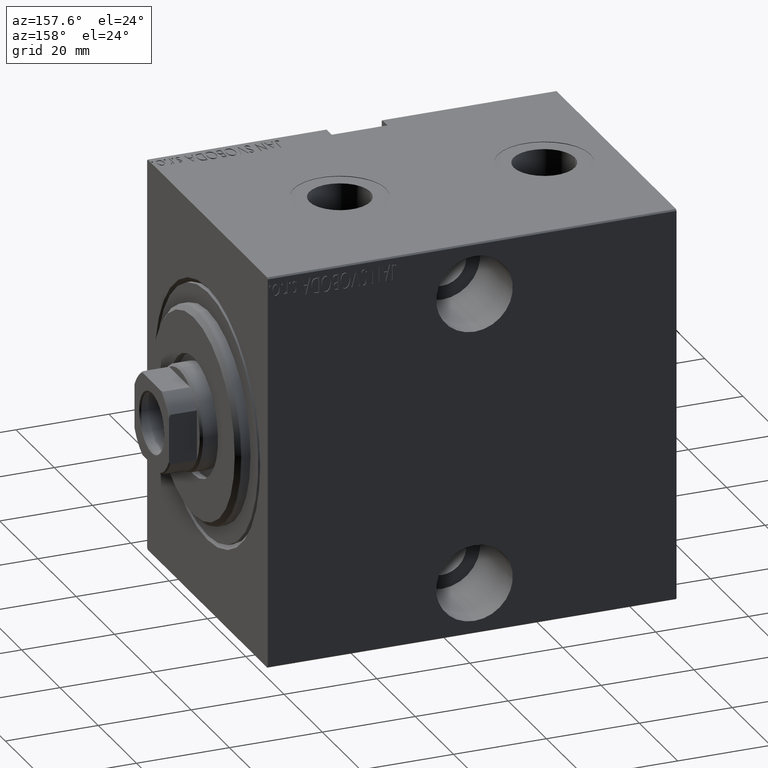
[diagram: clean part render]
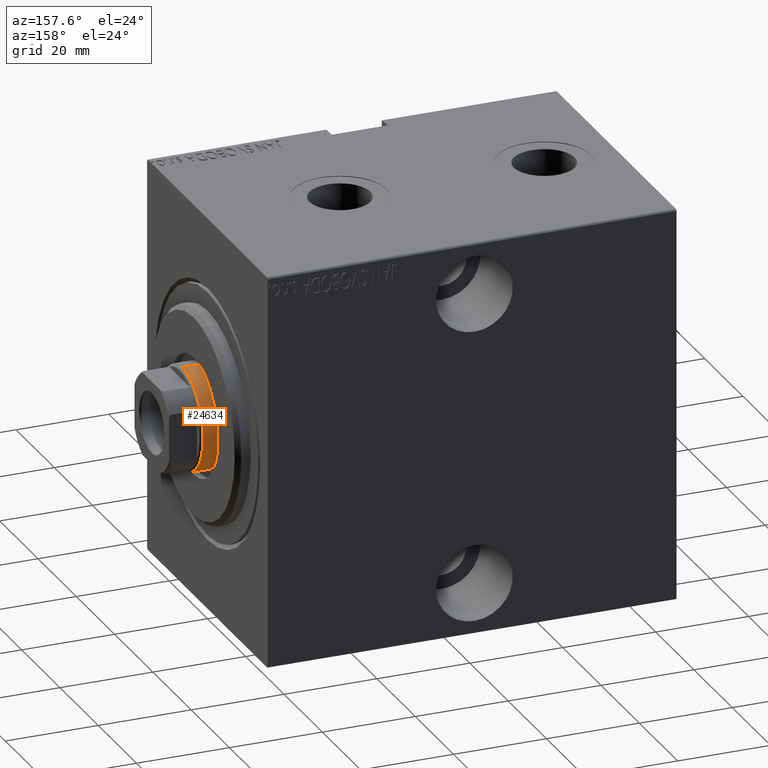
[diagram: same view with one face highlighted and labeled with its STEP entity id]
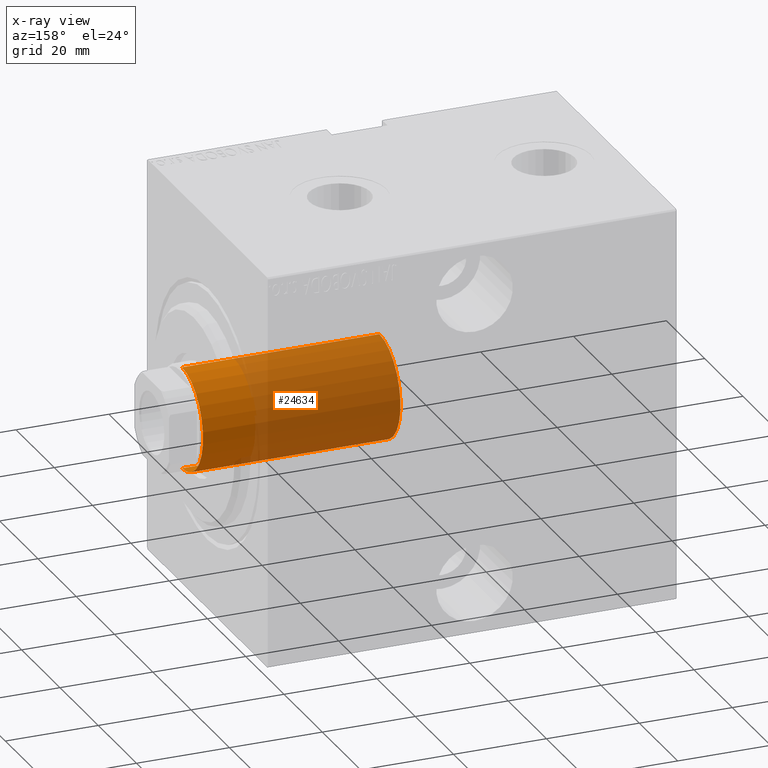
[diagram: x-ray of the same camera — body ghosted, the highlighted face saturated]
A machine part, auxiliary view. The second image highlights one B-rep face of the part: STEP entity #24634.
The next image is the same camera in x-ray: the body ghosted, the highlighted face saturated — about 74% of this face is hidden behind the body in this view.
In plain terms, the highlighted cylindrical surface (partial cylindrical patch) has radius 11 mm, axis along (-1, -0, 0).
Its self-contained STEP definition (entity closure, byte-faithful):
#152 = CARTESIAN_POINT ( 'NONE',  ( 11.00000000000000000, 1.347111479062088405E-15, 81.49999999999997158 ) ) ;
#296 = CIRCLE ( 'NONE', #30771, 11.00000000000000000 ) ;
#2436 = VERTEX_POINT ( 'NONE', #152 ) ;
#3063 = VECTOR ( 'NONE', #39102, 1000.000000000000000 ) ;
#3264 = VERTEX_POINT ( 'NONE', #15208 ) ;
#4395 = AXIS2_PLACEMENT_3D ( 'NONE', #12074, #14908, #25319 ) ;
#4932 = DIRECTION ( 'NONE',  ( -1.000000000000000000, 0.000000000000000000, 0.000000000000000000 ) ) ;
#7599 = EDGE_LOOP ( 'NONE', ( #23612, #20961, #18932, #10983 ) ) ;
#7776 = EDGE_CURVE ( 'NONE', #36027, #33433, #25422, .T. ) ;
#8930 = CARTESIAN_POINT ( 'NONE',  ( -11.00000000000000000, 0.000000000000000000, 81.49999999999997158 ) ) ;
#9305 = AXIS2_PLACEMENT_3D ( 'NONE', #27928, #31192, #4932 ) ;
#10983 = ORIENTED_EDGE ( 'NONE', *, *, #7776, .F. ) ;
#11056 = EDGE_CURVE ( 'NONE', #2436, #3264, #42191, .T. ) ;
#12074 = CARTESIAN_POINT ( 'NONE',  ( 0.000000000000000000, 0.000000000000000000, 81.49999999999997158 ) ) ;
#12835 = EDGE_CURVE ( 'NONE', #3264, #33433, #296, .T. ) ;
#14319 = DIRECTION ( 'NONE',  ( 1.000000000000000000, 0.000000000000000000, 0.000000000000000000 ) ) ;
#14908 = DIRECTION ( 'NONE',  ( 0.000000000000000000, 0.000000000000000000, -1.000000000000000000 ) ) ;
#15208 = CARTESIAN_POINT ( 'NONE',  ( 11.00000000000000000, 1.347111479062088405E-15, 39.00000000000000000 ) ) ;
#18729 = CARTESIAN_POINT ( 'NONE',  ( 11.00000000000000000, 1.347111479062088405E-15, 81.99999999999998579 ) ) ;
#18932 = ORIENTED_EDGE ( 'NONE', *, *, #12835, .T. ) ;
#19345 = CARTESIAN_POINT ( 'NONE',  ( -11.00000000000000000, 0.000000000000000000, 81.99999999999998579 ) ) ;
#20961 = ORIENTED_EDGE ( 'NONE', *, *, #11056, .T. ) ;
#22437 = CIRCLE ( 'NONE', #4395, 11.00000000000000000 ) ;
#23580 = EDGE_CURVE ( 'NONE', #36027, #2436, #22437, .T. ) ;
#23612 = ORIENTED_EDGE ( 'NONE', *, *, #23580, .T. ) ;
#24634 = ADVANCED_FACE ( 'NONE', ( #34022 ), #34667, .T. ) ;
#25319 = DIRECTION ( 'NONE',  ( 1.000000000000000000, 0.000000000000000000, 0.000000000000000000 ) ) ;
#25422 = LINE ( 'NONE', #19345, #3063 ) ;
#27928 = CARTESIAN_POINT ( 'NONE',  ( 0.000000000000000000, 0.000000000000000000, 81.99999999999998579 ) ) ;
#27968 = CARTESIAN_POINT ( 'NONE',  ( 0.000000000000000000, 0.000000000000000000, 39.00000000000000000 ) ) ;
#30771 = AXIS2_PLACEMENT_3D ( 'NONE', #27968, #34497, #14319 ) ;
#30899 = CARTESIAN_POINT ( 'NONE',  ( -11.00000000000000000, 0.000000000000000000, 39.00000000000000000 ) ) ;
#31192 = DIRECTION ( 'NONE',  ( -0.000000000000000000, -0.000000000000000000, -1.000000000000000000 ) ) ;
#31418 = VECTOR ( 'NONE', #32410, 1000.000000000000000 ) ;
#32410 = DIRECTION ( 'NONE',  ( -0.000000000000000000, -0.000000000000000000, -1.000000000000000000 ) ) ;
#33433 = VERTEX_POINT ( 'NONE', #30899 ) ;
#34022 = FACE_OUTER_BOUND ( 'NONE', #7599, .T. ) ;
#34497 = DIRECTION ( 'NONE',  ( 0.000000000000000000, 0.000000000000000000, 1.000000000000000000 ) ) ;
#34667 = CYLINDRICAL_SURFACE ( 'NONE', #9305, 11.00000000000000000 ) ;
#36027 = VERTEX_POINT ( 'NONE', #8930 ) ;
#39102 = DIRECTION ( 'NONE',  ( -0.000000000000000000, -0.000000000000000000, -1.000000000000000000 ) ) ;
#42191 = LINE ( 'NONE', #18729, #31418 ) ;